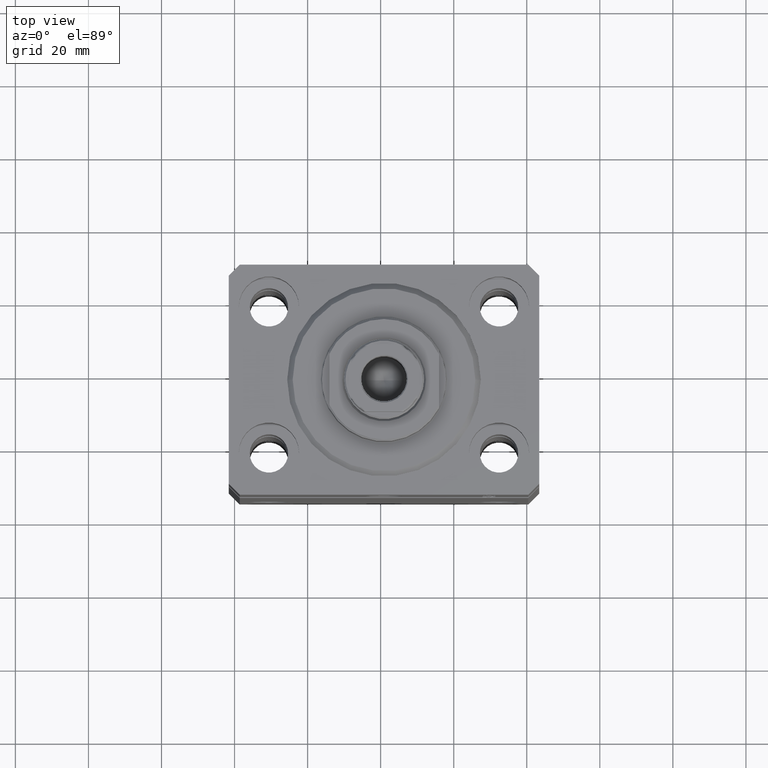
[diagram: clean part render]
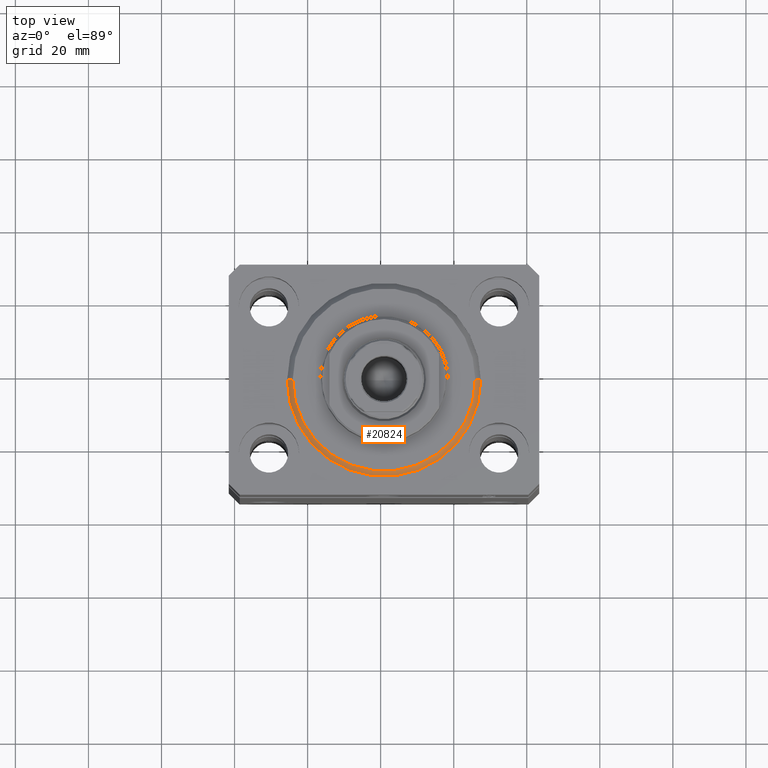
[diagram: same view with one face highlighted and labeled with its STEP entity id]
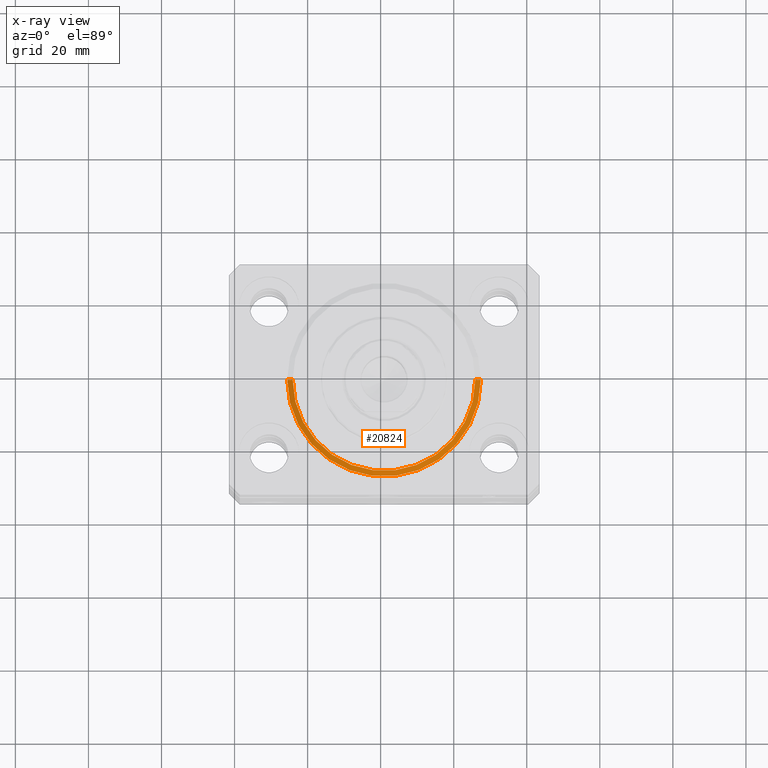
[diagram: x-ray of the same camera — body ghosted, the highlighted face saturated]
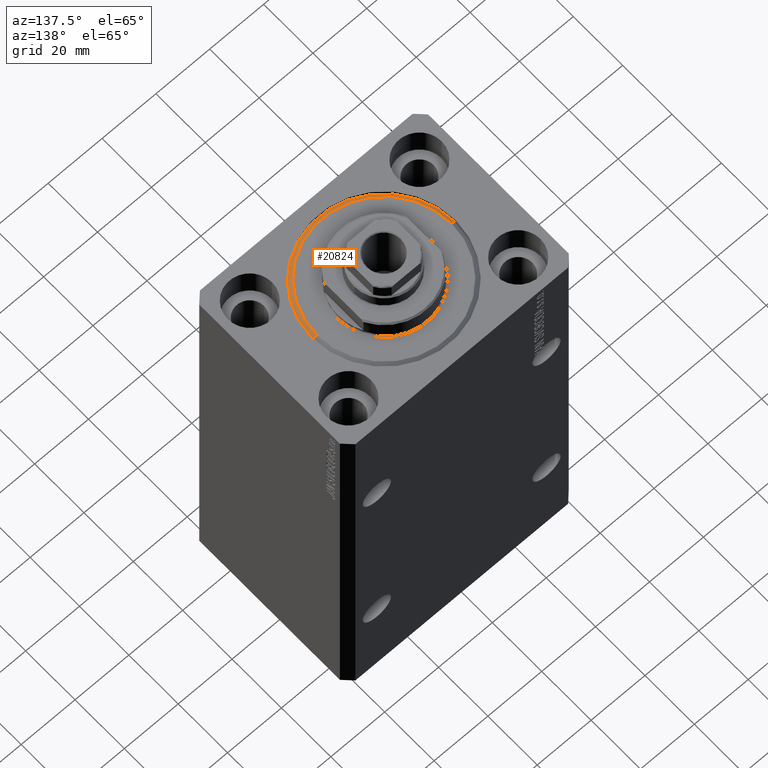
[diagram: same view with one face highlighted and labeled with its STEP entity id]
A machine part, top view. The second image highlights one B-rep face of the part: STEP entity #20824.
The next image is the same camera in x-ray: the body ghosted, the highlighted face saturated — about 0% of this face is hidden behind the body in this view.
A second angle (auxiliary view) of the same face is appended — the face is thin or edge-on in the first view.
In plain terms, the highlighted conical surface has half-angle 45 deg.
Its self-contained STEP definition (entity closure, byte-faithful):
#2147 = CARTESIAN_POINT ( 'NONE',  ( 26.50000000000000355, 3.245314017740486554E-15, 1.500000000000018652 ) ) ;
#2240 = DIRECTION ( 'NONE',  ( 0.7071067811865483499, 0.000000000000000000, 0.7071067811865466846 ) ) ;
#3448 = DIRECTION ( 'NONE',  ( -0.000000000000000000, -0.000000000000000000, -1.000000000000000000 ) ) ;
#5208 = VECTOR ( 'NONE', #37921, 1000.000000000000000 ) ;
#5274 = VERTEX_POINT ( 'NONE', #2147 ) ;
#5380 = CIRCLE ( 'NONE', #26605, 26.50000000000000355 ) ;
#5683 = ORIENTED_EDGE ( 'NONE', *, *, #34811, .F. ) ;
#6034 = VERTEX_POINT ( 'NONE', #40269 ) ;
#9257 = AXIS2_PLACEMENT_3D ( 'NONE', #25198, #3448, #10300 ) ;
#10300 = DIRECTION ( 'NONE',  ( 1.000000000000000000, 0.000000000000000000, 0.000000000000000000 ) ) ;
#11137 = VERTEX_POINT ( 'NONE', #43192 ) ;
#12175 = ORIENTED_EDGE ( 'NONE', *, *, #26843, .T. ) ;
#12579 = EDGE_CURVE ( 'NONE', #6034, #11137, #31941, .T. ) ;
#14349 = FACE_OUTER_BOUND ( 'NONE', #17349, .T. ) ;
#15461 = ORIENTED_EDGE ( 'NONE', *, *, #23526, .F. ) ;
#16158 = VECTOR ( 'NONE', #2240, 1000.000000000000000 ) ;
#17349 = EDGE_LOOP ( 'NONE', ( #15461, #30675, #12175, #5683 ) ) ;
#20824 = ADVANCED_FACE ( 'NONE', ( #14349 ), #27079, .T. ) ;
#23526 = EDGE_CURVE ( 'NONE', #11137, #40677, #27384, .T. ) ;
#23939 = CARTESIAN_POINT ( 'NONE',  ( -26.50000000000000355, 3.245314017740486554E-15, 1.500000000000018652 ) ) ;
#24916 = DIRECTION ( 'NONE',  ( -0.000000000000000000, -0.000000000000000000, 1.000000000000000000 ) ) ;
#25198 = CARTESIAN_POINT ( 'NONE',  ( 0.000000000000000000, 0.000000000000000000, 0.000000000000000000 ) ) ;
#26605 = AXIS2_PLACEMENT_3D ( 'NONE', #31382, #42369, #38929 ) ;
#26843 = EDGE_CURVE ( 'NONE', #6034, #5274, #30663, .T. ) ;
#27079 = CONICAL_SURFACE ( 'NONE', #33651, 26.50000000000000355, 0.7853981633974495002 ) ;
#27384 = LINE ( 'NONE', #23939, #5208 ) ;
#30663 = LINE ( 'NONE', #36623, #16158 ) ;
#30675 = ORIENTED_EDGE ( 'NONE', *, *, #12579, .F. ) ;
#31382 = CARTESIAN_POINT ( 'NONE',  ( 0.000000000000000000, 0.000000000000000000, 1.500000000000018652 ) ) ;
#31941 = CIRCLE ( 'NONE', #9257, 24.99999999999998224 ) ;
#33651 = AXIS2_PLACEMENT_3D ( 'NONE', #38449, #24916, #41888 ) ;
#34811 = EDGE_CURVE ( 'NONE', #40677, #5274, #5380, .T. ) ;
#36479 = CARTESIAN_POINT ( 'NONE',  ( -26.50000000000000355, 0.000000000000000000, 1.500000000000018652 ) ) ;
#36623 = CARTESIAN_POINT ( 'NONE',  ( 26.50000000000000355, 0.000000000000000000, 1.500000000000018652 ) ) ;
#37921 = DIRECTION ( 'NONE',  ( -0.7071067811865483499, 8.659560562354942719E-17, 0.7071067811865466846 ) ) ;
#38449 = CARTESIAN_POINT ( 'NONE',  ( 0.000000000000000000, 0.000000000000000000, 1.500000000000018652 ) ) ;
#38929 = DIRECTION ( 'NONE',  ( 1.000000000000000000, 0.000000000000000000, 0.000000000000000000 ) ) ;
#40269 = CARTESIAN_POINT ( 'NONE',  ( 24.99999999999998224, 0.000000000000000000, 0.000000000000000000 ) ) ;
#40677 = VERTEX_POINT ( 'NONE', #36479 ) ;
#41888 = DIRECTION ( 'NONE',  ( 1.000000000000000000, 0.000000000000000000, 0.000000000000000000 ) ) ;
#42369 = DIRECTION ( 'NONE',  ( -0.000000000000000000, -0.000000000000000000, 1.000000000000000000 ) ) ;
#43192 = CARTESIAN_POINT ( 'NONE',  ( -24.99999999999998224, 3.153465507804433615E-15, 0.000000000000000000 ) ) ;